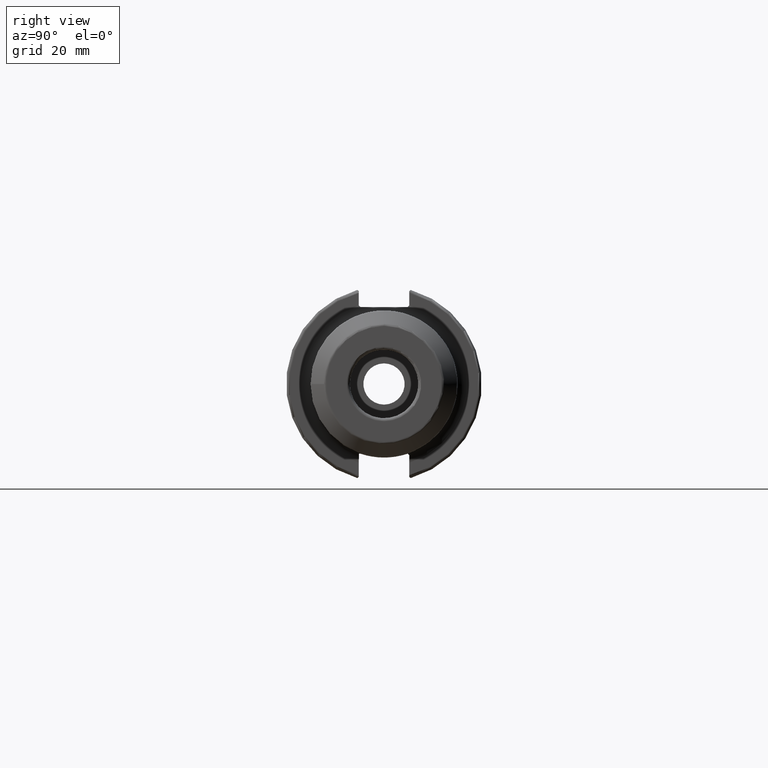
[diagram: clean part render]
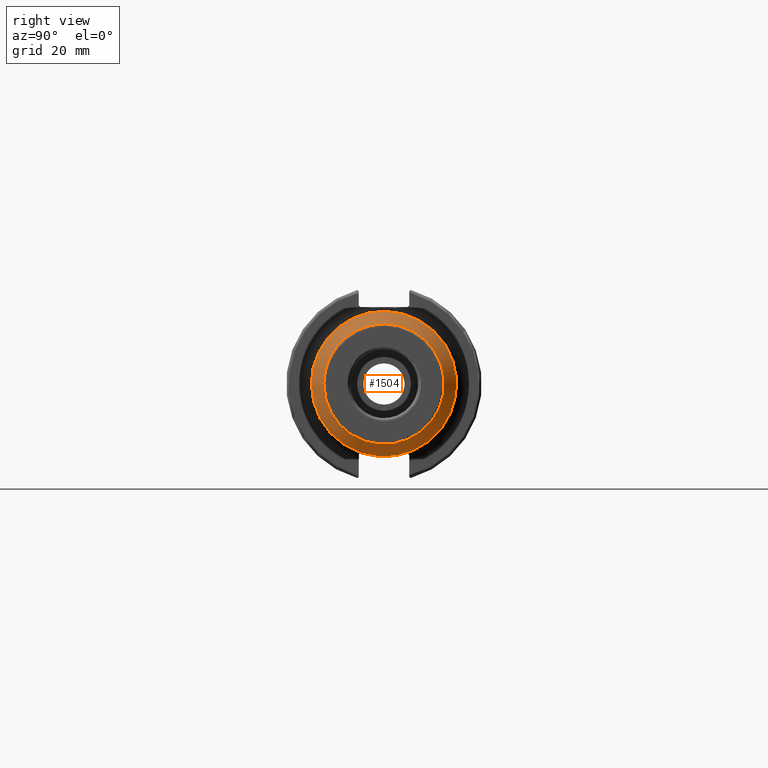
[diagram: same view with one face highlighted and labeled with its STEP entity id]
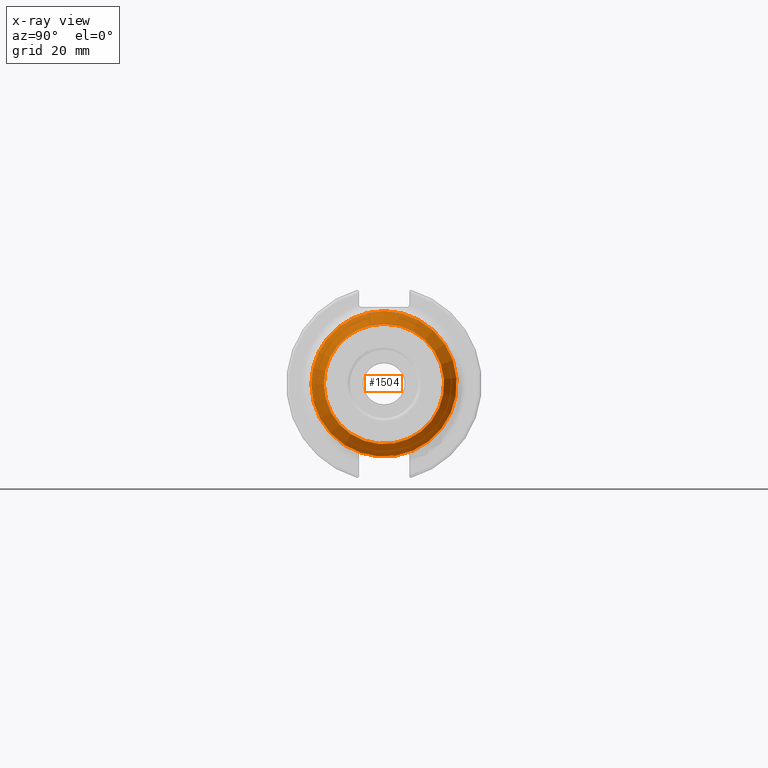
[diagram: x-ray of the same camera — body ghosted, the highlighted face saturated]
A machine part, right view. The second image highlights one B-rep face of the part: STEP entity #1504.
The next image is the same camera in x-ray: the body ghosted, the highlighted face saturated — about 0% of this face is hidden behind the body in this view.
In plain terms, the highlighted conical surface has half-angle 45 deg.
Its self-contained STEP definition (entity closure, byte-faithful):
#92=CONICAL_SURFACE('',#1623,21.563,0.785398163397447);
#104=LINE('',#2269,#188);
#188=VECTOR('',#1824,21.563);
#356=FACE_OUTER_BOUND('',#444,.T.);
#444=EDGE_LOOP('',(#1031,#1032,#1033,#1034,#1035,#1036));
#548=CIRCLE('',#1621,19.5428932188135);
#549=CIRCLE('',#1622,19.5428932188135);
#550=CIRCLE('',#1624,23.5831067811865);
#551=CIRCLE('',#1625,23.5831067811865);
#623=VERTEX_POINT('',#2262);
#624=VERTEX_POINT('',#2264);
#625=VERTEX_POINT('',#2268);
#626=VERTEX_POINT('',#2270);
#784=EDGE_CURVE('',#623,#624,#548,.T.);
#785=EDGE_CURVE('',#624,#623,#549,.T.);
#786=EDGE_CURVE('',#624,#625,#104,.T.);
#787=EDGE_CURVE('',#626,#625,#550,.T.);
#788=EDGE_CURVE('',#625,#626,#551,.T.);
#1031=ORIENTED_EDGE('',*,*,#785,.F.);
#1032=ORIENTED_EDGE('',*,*,#786,.T.);
#1033=ORIENTED_EDGE('',*,*,#787,.F.);
#1034=ORIENTED_EDGE('',*,*,#788,.F.);
#1035=ORIENTED_EDGE('',*,*,#786,.F.);
#1036=ORIENTED_EDGE('',*,*,#784,.F.);
#1504=ADVANCED_FACE('',(#356),#92,.T.);
#1621=AXIS2_PLACEMENT_3D('',#2265,#1818,#1819);
#1622=AXIS2_PLACEMENT_3D('',#2266,#1820,#1821);
#1623=AXIS2_PLACEMENT_3D('',#2267,#1822,#1823);
#1624=AXIS2_PLACEMENT_3D('',#2271,#1825,#1826);
#1625=AXIS2_PLACEMENT_3D('',#2272,#1827,#1828);
#1818=DIRECTION('center_axis',(1.,0.,0.));
#1819=DIRECTION('ref_axis',(0.,-1.,3.06161699786838E-17));
#1820=DIRECTION('center_axis',(1.,0.,0.));
#1821=DIRECTION('ref_axis',(0.,-1.,3.06161699786838E-17));
#1822=DIRECTION('center_axis',(-1.,0.,0.));
#1823=DIRECTION('ref_axis',(0.,1.,0.));
#1824=DIRECTION('',(-0.707106781186548,-0.707106781186547,-8.65956056235492E-17));
#1825=DIRECTION('center_axis',(-1.,0.,0.));
#1826=DIRECTION('ref_axis',(0.,-1.,3.06161699786838E-17));
#1827=DIRECTION('center_axis',(-1.,0.,0.));
#1828=DIRECTION('ref_axis',(0.,-1.,3.06161699786838E-17));
#2262=CARTESIAN_POINT('',(152.107106781187,-2.39331416264984E-15,19.5428932188134));
#2264=CARTESIAN_POINT('',(152.107106781187,-19.5428932188134,-2.39331416264984E-15));
#2265=CARTESIAN_POINT('Origin',(152.107106781187,0.,-2.9916427033123E-15));
#2266=CARTESIAN_POINT('Origin',(152.107106781187,0.,-2.9916427033123E-15));
#2267=CARTESIAN_POINT('Origin',(150.087,0.,0.));
#2268=CARTESIAN_POINT('',(148.066893218813,-23.5831067811865,-2.88809762335303E-15));
#2269=CARTESIAN_POINT('',(150.087,-21.563,-2.64070589300144E-15));
#2270=CARTESIAN_POINT('',(148.066893218813,-2.88809762335303E-15,23.5831067811865));
#2271=CARTESIAN_POINT('Origin',(148.066893218813,0.,-3.61012202919129E-15));
#2272=CARTESIAN_POINT('Origin',(148.066893218813,0.,-3.61012202919129E-15));